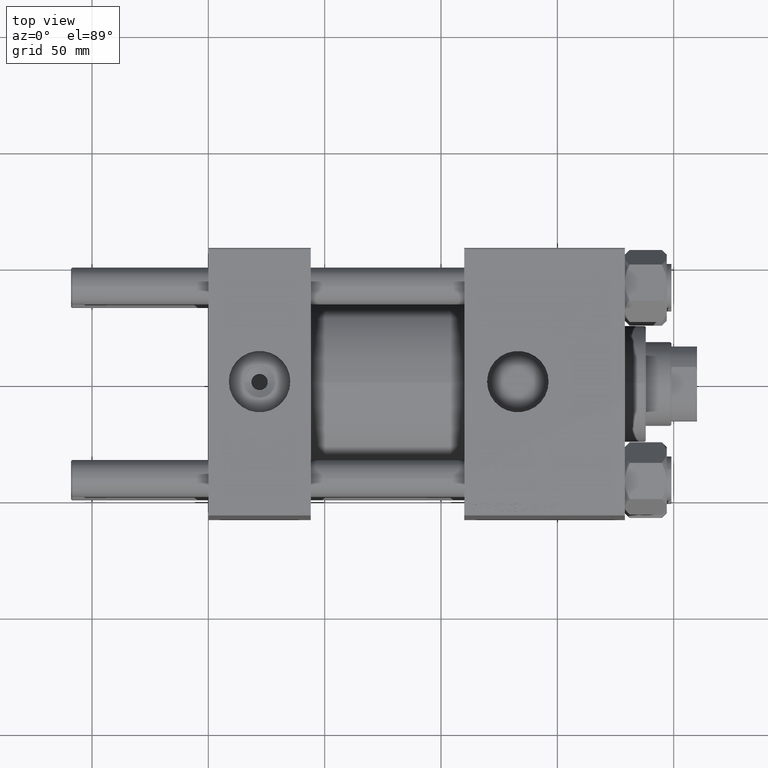
[diagram: clean part render]
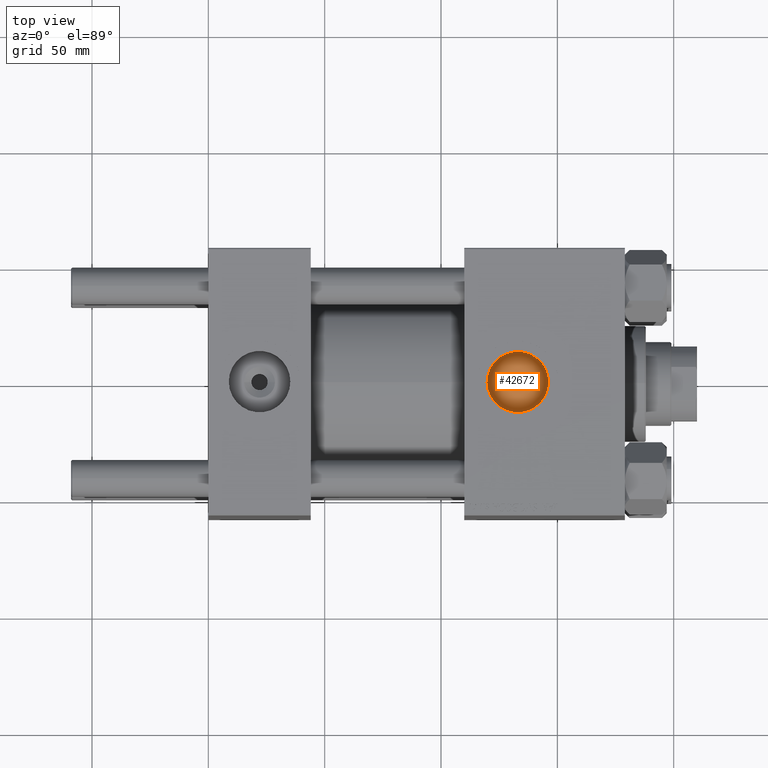
[diagram: same view with one face highlighted and labeled with its STEP entity id]
A machine part, top view. The second image highlights one B-rep face of the part: STEP entity #42672.
In plain terms, the highlighted planar face has unit normal (0, 0, 1).
Its self-contained STEP definition (entity closure, byte-faithful):
#1764 = PLANE ( 'NONE',  #17460 ) ;
#4860 = DIRECTION ( 'NONE',  ( 0.000000000000000000, 0.000000000000000000, 1.000000000000000000 ) ) ;
#8362 = AXIS2_PLACEMENT_3D ( 'NONE', #43785, #47863, #9128 ) ;
#9128 = DIRECTION ( 'NONE',  ( 1.000000000000000000, 0.000000000000000000, 0.000000000000000000 ) ) ;
#9425 = CIRCLE ( 'NONE', #38703, 13.22000000000000952 ) ;
#12989 = EDGE_LOOP ( 'NONE', ( #19143, #25243 ) ) ;
#16871 = VERTEX_POINT ( 'NONE', #33811 ) ;
#17460 = AXIS2_PLACEMENT_3D ( 'NONE', #23991, #43099, #44305 ) ;
#19143 = ORIENTED_EDGE ( 'NONE', *, *, #34842, .T. ) ;
#20909 = DIRECTION ( 'NONE',  ( 1.000000000000000000, 0.000000000000000000, 0.000000000000000000 ) ) ;
#22540 = EDGE_CURVE ( 'NONE', #42738, #16871, #9425, .T. ) ;
#23991 = CARTESIAN_POINT ( 'NONE',  ( 133.0000000000000000, -6.938893903907229955E-15, 41.09999999999999432 ) ) ;
#25243 = ORIENTED_EDGE ( 'NONE', *, *, #22540, .T. ) ;
#25434 = CARTESIAN_POINT ( 'NONE',  ( 146.2200000000000273, -5.319910835434427226E-15, 41.09999999999999432 ) ) ;
#33811 = CARTESIAN_POINT ( 'NONE',  ( 119.7800000000000011, -6.938893903907229955E-15, 41.09999999999999432 ) ) ;
#34842 = EDGE_CURVE ( 'NONE', #16871, #42738, #38418, .T. ) ;
#38418 = CIRCLE ( 'NONE', #8362, 13.22000000000000952 ) ;
#38703 = AXIS2_PLACEMENT_3D ( 'NONE', #39998, #4860, #20909 ) ;
#39998 = CARTESIAN_POINT ( 'NONE',  ( 133.0000000000000000, -6.938893903907229955E-15, 41.09999999999999432 ) ) ;
#42672 = ADVANCED_FACE ( 'NONE', ( #46929 ), #1764, .T. ) ;
#42738 = VERTEX_POINT ( 'NONE', #25434 ) ;
#43099 = DIRECTION ( 'NONE',  ( 0.000000000000000000, 0.000000000000000000, 1.000000000000000000 ) ) ;
#43785 = CARTESIAN_POINT ( 'NONE',  ( 133.0000000000000000, -6.938893903907229955E-15, 41.09999999999999432 ) ) ;
#44305 = DIRECTION ( 'NONE',  ( 1.000000000000000000, 0.000000000000000000, -0.000000000000000000 ) ) ;
#46929 = FACE_OUTER_BOUND ( 'NONE', #12989, .T. ) ;
#47863 = DIRECTION ( 'NONE',  ( 0.000000000000000000, 0.000000000000000000, 1.000000000000000000 ) ) ;